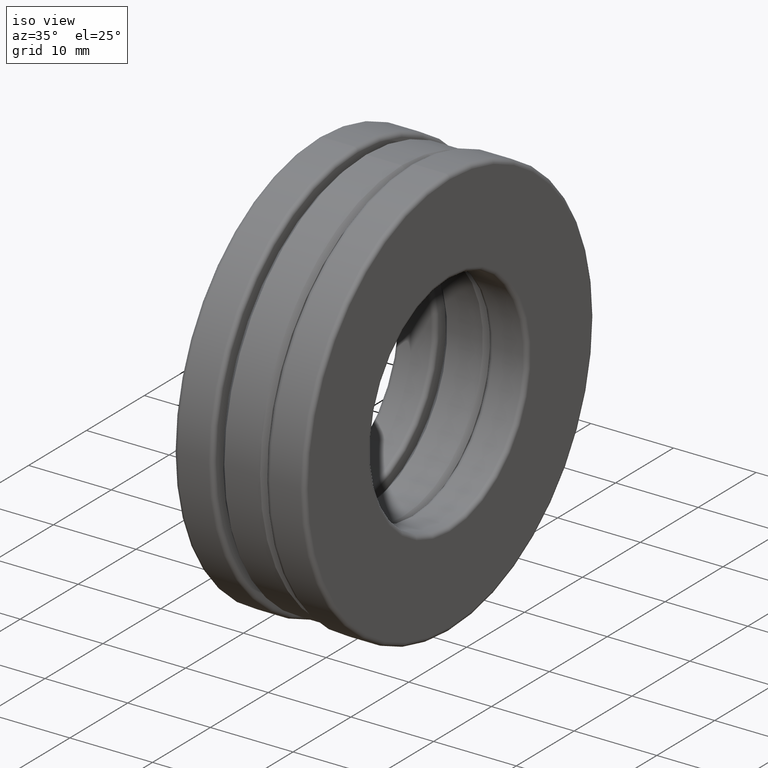
[diagram: clean part render]
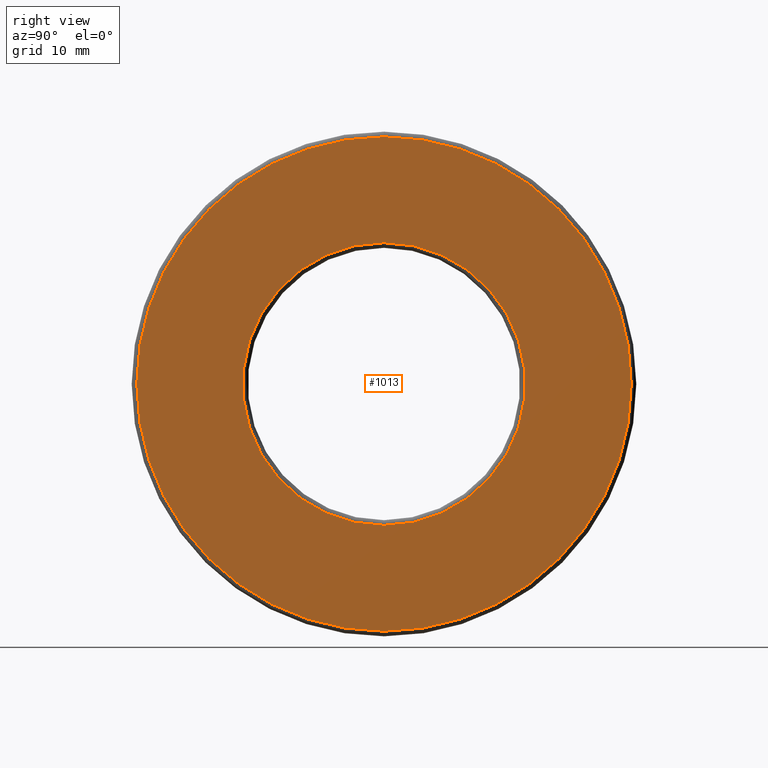
[diagram: tour spotlight — one face highlighted and labeled with its STEP entity id]
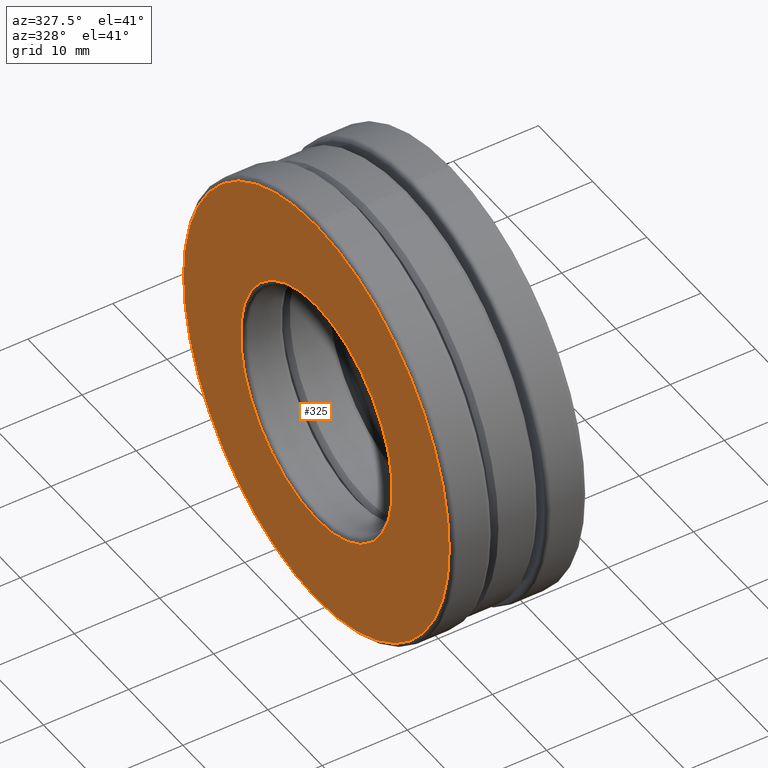
[diagram: tour spotlight — one face highlighted and labeled with its STEP entity id]
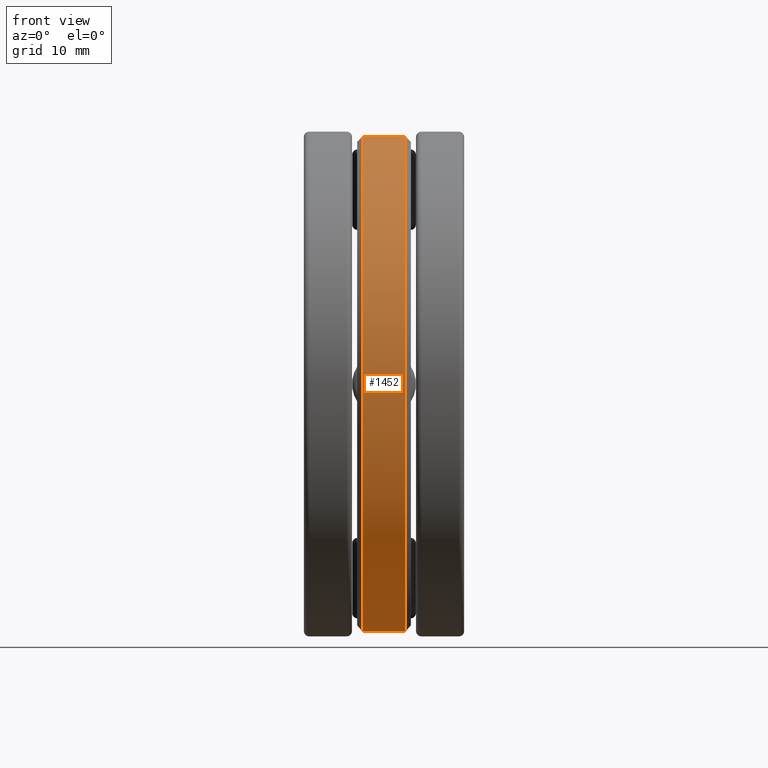
[diagram: tour spotlight — one face highlighted and labeled with its STEP entity id]
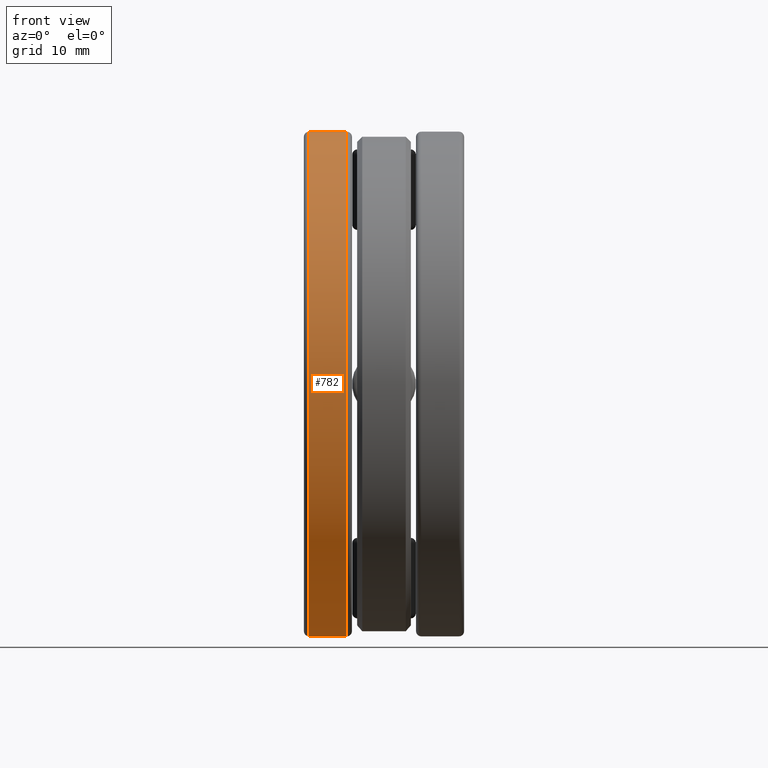
[diagram: tour spotlight — one face highlighted and labeled with its STEP entity id]
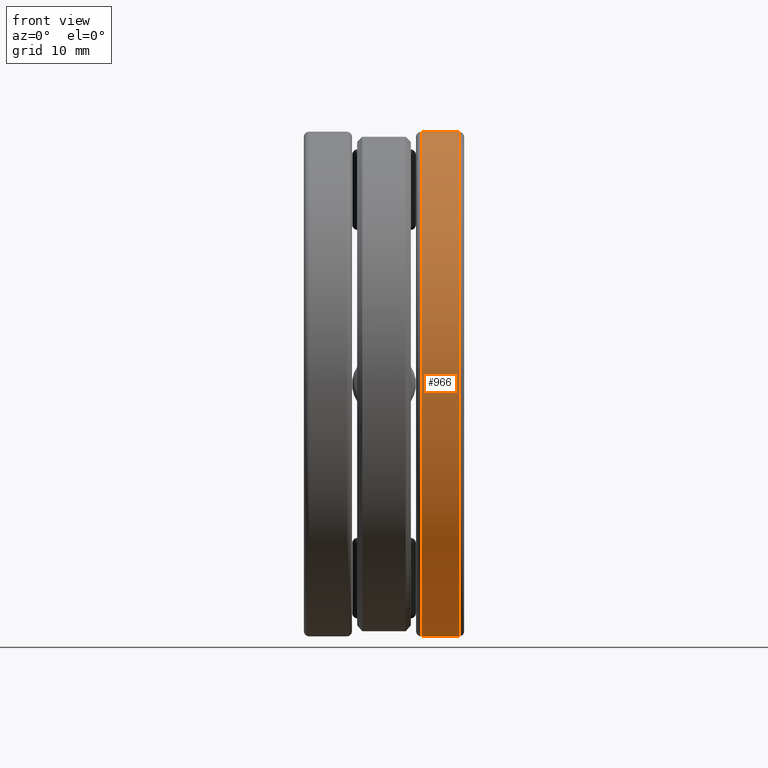
[diagram: tour spotlight — one face highlighted and labeled with its STEP entity id]
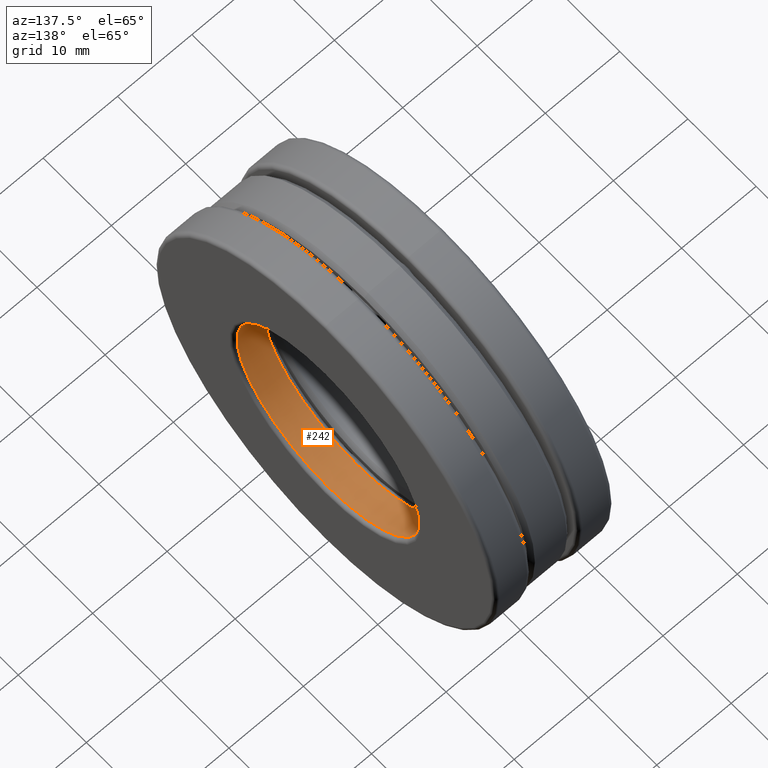
[diagram: tour spotlight — one face highlighted and labeled with its STEP entity id]
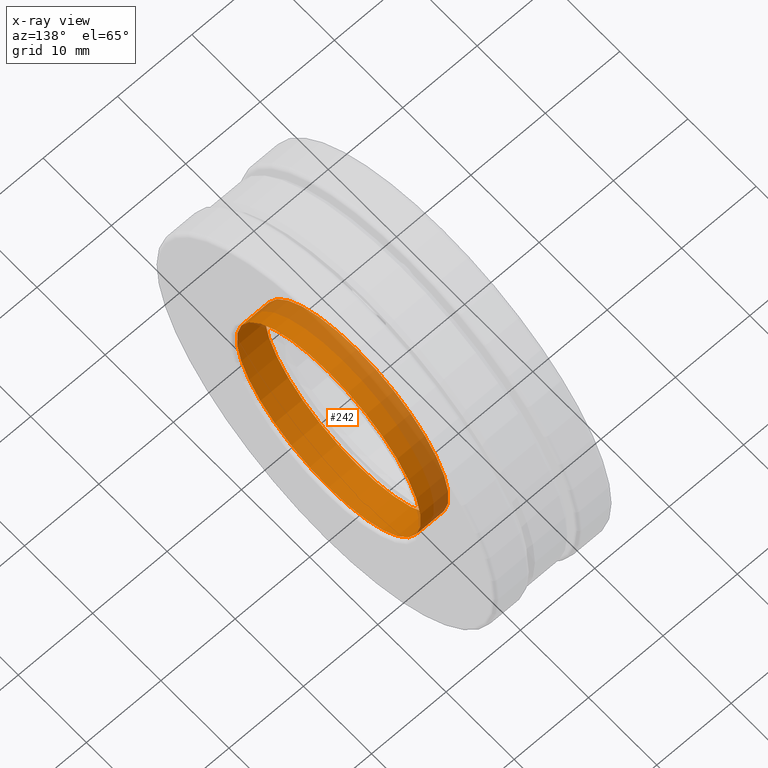
[diagram: x-ray of the same camera — body ghosted, this tour face saturated]
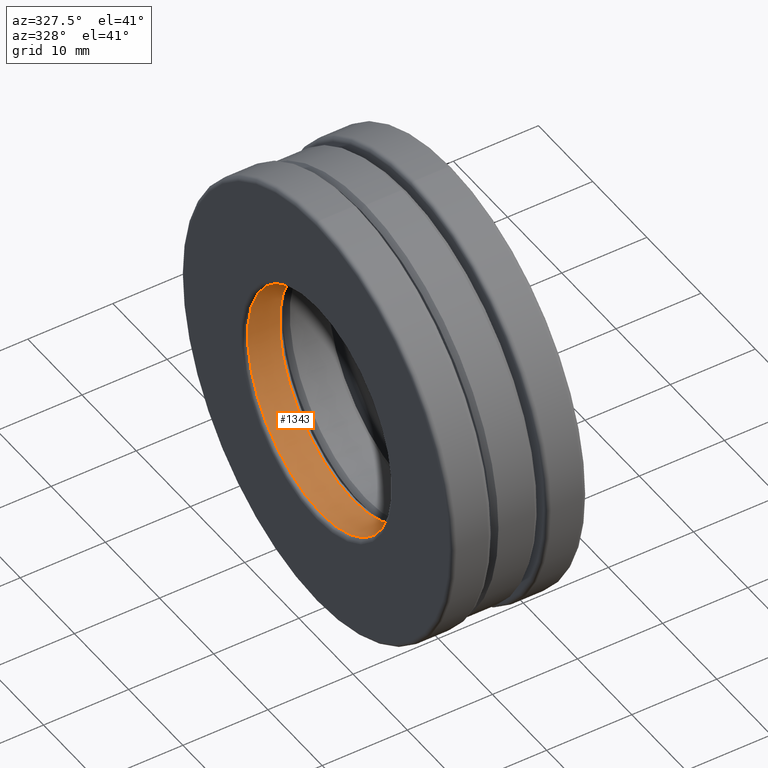
[diagram: tour spotlight — one face highlighted and labeled with its STEP entity id]
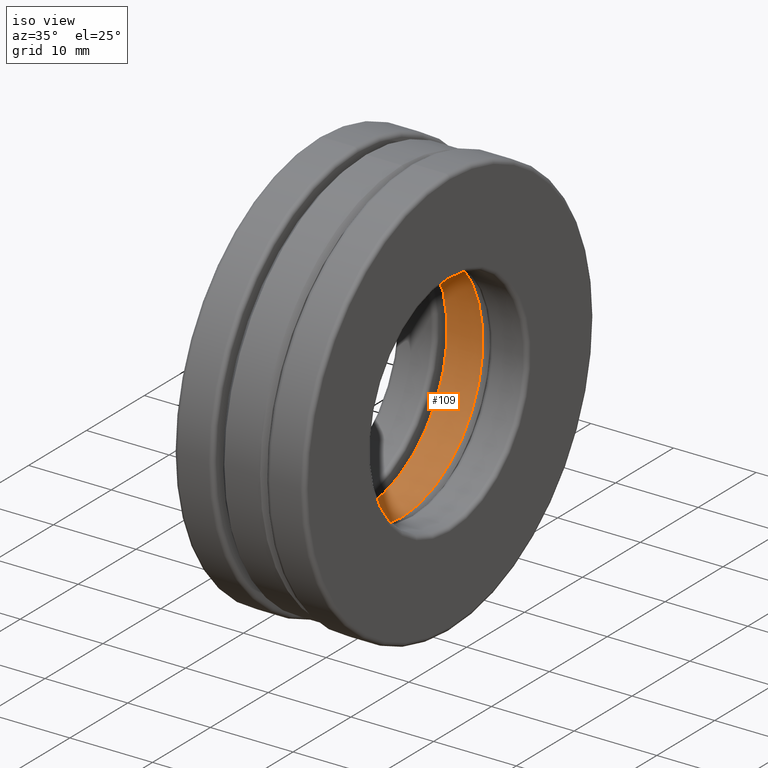
[diagram: tour spotlight — one face highlighted and labeled with its STEP entity id]
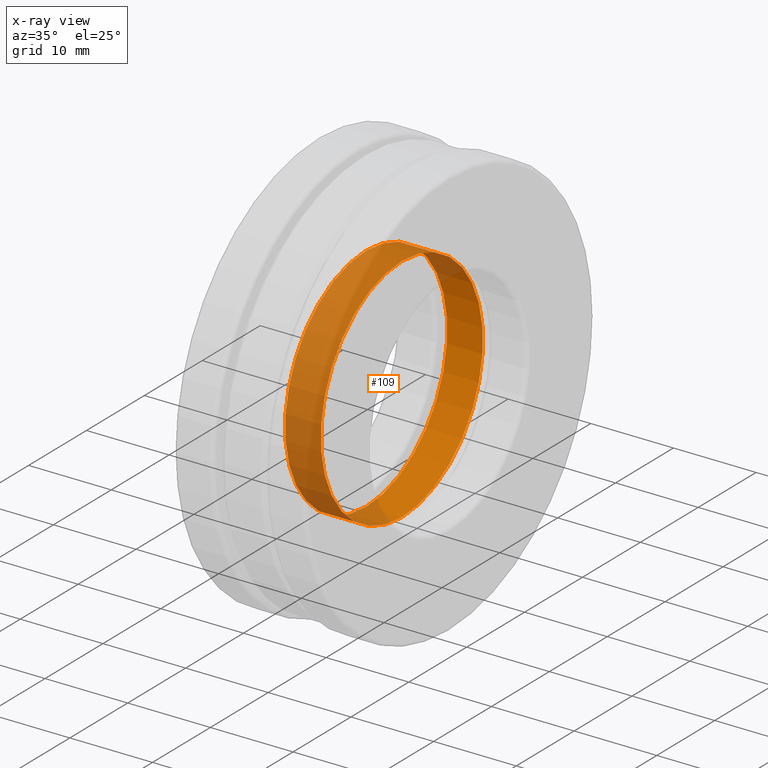
[diagram: x-ray of the same camera — body ghosted, this tour face saturated]
A machine part: a face-by-face anatomy tour. The part has 60 B-rep faces; the first image is the clean iso view, then the 8 largest visible faces are spotlighted one at a time (largest first), each with its STEP entity span.

Face 1 — right view, entity #1013. In plain terms, the highlighted planar face has unit normal (1, 0, 0).
Definition (entity closure, byte-faithful):
#3 = FACE_OUTER_BOUND ( 'NONE', #803, .T. ) ;
#4 = DIRECTION ( 'NONE',  ( -1.000000000000000000, -0.0000000000000000000, -0.0000000000000000000 ) ) ;
#48 = CIRCLE ( 'NONE', #824, 0.9643749999999999800 ) ;
#128 = CARTESIAN_POINT ( 'NONE',  ( 0.3125000000000000000, 0.0000000000000000000, 0.0000000000000000000 ) ) ;
#149 = DIRECTION ( 'NONE',  ( 0.0000000000000000000, 0.0000000000000000000, 1.000000000000000000 ) ) ;
#173 = EDGE_CURVE ( 'NONE', #286, #286, #48, .T. ) ;
#203 = AXIS2_PLACEMENT_3D ( 'NONE', #1364, #4, #1367 ) ;
#230 = CARTESIAN_POINT ( 'NONE',  ( 0.3125000000000000000, 0.0000000000000000000, 0.9643749999999999800 ) ) ;
#286 = VERTEX_POINT ( 'NONE', #230 ) ;
#357 = VERTEX_POINT ( 'NONE', #1247 ) ;
#581 = DIRECTION ( 'NONE',  ( -1.000000000000000000, -0.0000000000000000000, -0.0000000000000000000 ) ) ;
#692 = ORIENTED_EDGE ( 'NONE', *, *, #173, .F. ) ;
#726 = AXIS2_PLACEMENT_3D ( 'NONE', #1102, #753, #764 ) ;
#753 = DIRECTION ( 'NONE',  ( 1.000000000000000000, 0.0000000000000000000, 0.0000000000000000000 ) ) ;
#764 = DIRECTION ( 'NONE',  ( 0.0000000000000000000, 0.0000000000000000000, -1.000000000000000000 ) ) ;
#803 = EDGE_LOOP ( 'NONE', ( #692 ) ) ;
#824 = AXIS2_PLACEMENT_3D ( 'NONE', #128, #581, #149 ) ;
#935 = EDGE_LOOP ( 'NONE', ( #1448 ) ) ;
#958 = PLANE ( 'NONE',  #726 ) ;
#1013 = ADVANCED_FACE ( 'NONE', ( #1098, #3 ), #958, .T. ) ;
#1098 = FACE_BOUND ( 'NONE', #935, .T. ) ;
#1102 = CARTESIAN_POINT ( 'NONE',  ( 0.3125000000000000000, 0.0000000000000000000, 0.0000000000000000000 ) ) ;
#1116 = CIRCLE ( 'NONE', #203, 0.5512499999999999100 ) ;
#1247 = CARTESIAN_POINT ( 'NONE',  ( 0.3125000000000000000, 0.0000000000000000000, 0.5512499999999999100 ) ) ;
#1364 = CARTESIAN_POINT ( 'NONE',  ( 0.3125000000000000000, 0.0000000000000000000, 0.0000000000000000000 ) ) ;
#1367 = DIRECTION ( 'NONE',  ( 0.0000000000000000000, 0.0000000000000000000, 1.000000000000000000 ) ) ;
#1448 = ORIENTED_EDGE ( 'NONE', *, *, #1472, .T. ) ;
#1472 = EDGE_CURVE ( 'NONE', #357, #357, #1116, .T. ) ;

Face 2 — auxiliary view, entity #325. In plain terms, the highlighted planar face has unit normal (1, 0, 0).
Definition (entity closure, byte-faithful):
#5 = CIRCLE ( 'NONE', #425, 0.9643749999999998700 ) ;
#52 = EDGE_LOOP ( 'NONE', ( #740 ) ) ;
#56 = CARTESIAN_POINT ( 'NONE',  ( -0.3124999999999999400, 0.0000000000000000000, 0.0000000000000000000 ) ) ;
#84 = CARTESIAN_POINT ( 'NONE',  ( -0.3125000000000000000, 0.0000000000000000000, 0.0000000000000000000 ) ) ;
#174 = VERTEX_POINT ( 'NONE', #1358 ) ;
#195 = DIRECTION ( 'NONE',  ( 0.0000000000000000000, 0.0000000000000000000, 1.000000000000000000 ) ) ;
#290 = FACE_BOUND ( 'NONE', #52, .T. ) ;
#325 = ADVANCED_FACE ( 'NONE', ( #290, #1284 ), #723, .F. ) ;
#425 = AXIS2_PLACEMENT_3D ( 'NONE', #84, #748, #195 ) ;
#584 = EDGE_CURVE ( 'NONE', #174, #174, #5, .T. ) ;
#598 = DIRECTION ( 'NONE',  ( 0.0000000000000000000, 0.0000000000000000000, 1.000000000000000000 ) ) ;
#608 = VERTEX_POINT ( 'NONE', #1128 ) ;
#697 = AXIS2_PLACEMENT_3D ( 'NONE', #1061, #1300, #841 ) ;
#723 = PLANE ( 'NONE',  #697 ) ;
#740 = ORIENTED_EDGE ( 'NONE', *, *, #756, .F. ) ;
#748 = DIRECTION ( 'NONE',  ( -1.000000000000000000, -0.0000000000000000000, -0.0000000000000000000 ) ) ;
#756 = EDGE_CURVE ( 'NONE', #608, #608, #1349, .T. ) ;
#841 = DIRECTION ( 'NONE',  ( 0.0000000000000000000, 0.0000000000000000000, -1.000000000000000000 ) ) ;
#982 = ORIENTED_EDGE ( 'NONE', *, *, #584, .T. ) ;
#1061 = CARTESIAN_POINT ( 'NONE',  ( -0.3125000000000000000, -5.166127068200195800E-017, 0.0000000000000000000 ) ) ;
#1128 = CARTESIAN_POINT ( 'NONE',  ( -0.3124999999999999400, 0.0000000000000000000, 0.5512500000000000200 ) ) ;
#1264 = AXIS2_PLACEMENT_3D ( 'NONE', #56, #1298, #598 ) ;
#1284 = FACE_OUTER_BOUND ( 'NONE', #1339, .T. ) ;
#1298 = DIRECTION ( 'NONE',  ( -1.000000000000000000, -0.0000000000000000000, -0.0000000000000000000 ) ) ;
#1300 = DIRECTION ( 'NONE',  ( 1.000000000000000000, 0.0000000000000000000, 0.0000000000000000000 ) ) ;
#1339 = EDGE_LOOP ( 'NONE', ( #982 ) ) ;
#1349 = CIRCLE ( 'NONE', #1264, 0.5512500000000000200 ) ;
#1358 = CARTESIAN_POINT ( 'NONE',  ( -0.3125000000000000000, 0.0000000000000000000, 0.9643749999999998700 ) ) ;

Face 3 — front view, entity #1452. In plain terms, the highlighted cylindrical surface (bore or boss wall) has radius 24.4951 mm, axis along (-1, -0, -0).
Definition (entity closure, byte-faithful):
#157 = EDGE_LOOP ( 'NONE', ( #601 ) ) ;
#194 = VERTEX_POINT ( 'NONE', #439 ) ;
#204 = CARTESIAN_POINT ( 'NONE',  ( 0.08499999999999997800, 0.0000000000000000000, 0.0000000000000000000 ) ) ;
#439 = CARTESIAN_POINT ( 'NONE',  ( -0.08500000000000002000, 0.0000000000000000000, 0.9643749999999997600 ) ) ;
#461 = VERTEX_POINT ( 'NONE', #1241 ) ;
#551 = EDGE_CURVE ( 'NONE', #461, #461, #751, .T. ) ;
#552 = DIRECTION ( 'NONE',  ( -1.000000000000000000, -0.0000000000000000000, -0.0000000000000000000 ) ) ;
#601 = ORIENTED_EDGE ( 'NONE', *, *, #551, .T. ) ;
#644 = FACE_OUTER_BOUND ( 'NONE', #1153, .T. ) ;
#651 = DIRECTION ( 'NONE',  ( -1.000000000000000000, -0.0000000000000000000, -0.0000000000000000000 ) ) ;
#682 = AXIS2_PLACEMENT_3D ( 'NONE', #909, #552, #777 ) ;
#751 = CIRCLE ( 'NONE', #1071, 0.9643749999999997600 ) ;
#777 = DIRECTION ( 'NONE',  ( 0.0000000000000000000, 0.0000000000000000000, 1.000000000000000000 ) ) ;
#817 = CYLINDRICAL_SURFACE ( 'NONE', #682, 0.9643749999999997600 ) ;
#858 = DIRECTION ( 'NONE',  ( 0.0000000000000000000, 0.0000000000000000000, 1.000000000000000000 ) ) ;
#909 = CARTESIAN_POINT ( 'NONE',  ( 0.0000000000000000000, 0.0000000000000000000, 0.0000000000000000000 ) ) ;
#981 = AXIS2_PLACEMENT_3D ( 'NONE', #1429, #1203, #858 ) ;
#983 = EDGE_CURVE ( 'NONE', #194, #194, #1135, .T. ) ;
#1071 = AXIS2_PLACEMENT_3D ( 'NONE', #204, #651, #1461 ) ;
#1135 = CIRCLE ( 'NONE', #981, 0.9643749999999997600 ) ;
#1153 = EDGE_LOOP ( 'NONE', ( #1390 ) ) ;
#1203 = DIRECTION ( 'NONE',  ( -1.000000000000000000, -0.0000000000000000000, -0.0000000000000000000 ) ) ;
#1241 = CARTESIAN_POINT ( 'NONE',  ( 0.08499999999999997800, 0.0000000000000000000, 0.9643749999999997600 ) ) ;
#1348 = FACE_OUTER_BOUND ( 'NONE', #157, .T. ) ;
#1390 = ORIENTED_EDGE ( 'NONE', *, *, #983, .F. ) ;
#1429 = CARTESIAN_POINT ( 'NONE',  ( -0.08500000000000002000, 0.0000000000000000000, 0.0000000000000000000 ) ) ;
#1452 = ADVANCED_FACE ( 'NONE', ( #1348, #644 ), #817, .T. ) ;
#1461 = DIRECTION ( 'NONE',  ( 0.0000000000000000000, 0.0000000000000000000, 1.000000000000000000 ) ) ;

Face 4 — front view, entity #782. In plain terms, the highlighted cylindrical surface (bore or boss wall) has radius 25.0031 mm, axis along (-1, -0, -0).
Definition (entity closure, byte-faithful):
#58 = VERTEX_POINT ( 'NONE', #660 ) ;
#134 = FACE_OUTER_BOUND ( 'NONE', #1314, .T. ) ;
#140 = EDGE_CURVE ( 'NONE', #58, #58, #324, .T. ) ;
#271 = CIRCLE ( 'NONE', #338, 0.9843749999999997800 ) ;
#283 = CARTESIAN_POINT ( 'NONE',  ( 0.0000000000000000000, 0.0000000000000000000, 0.0000000000000000000 ) ) ;
#297 = EDGE_LOOP ( 'NONE', ( #1285 ) ) ;
#324 = CIRCLE ( 'NONE', #339, 0.9843749999999997800 ) ;
#338 = AXIS2_PLACEMENT_3D ( 'NONE', #993, #1108, #1451 ) ;
#339 = AXIS2_PLACEMENT_3D ( 'NONE', #568, #1141, #444 ) ;
#444 = DIRECTION ( 'NONE',  ( 0.0000000000000000000, 0.0000000000000000000, 1.000000000000000000 ) ) ;
#568 = CARTESIAN_POINT ( 'NONE',  ( -0.1449999999999999900, 0.0000000000000000000, 0.0000000000000000000 ) ) ;
#660 = CARTESIAN_POINT ( 'NONE',  ( -0.1449999999999999900, 0.0000000000000000000, 0.9843749999999997800 ) ) ;
#666 = CARTESIAN_POINT ( 'NONE',  ( -0.2925000000000000400, 0.0000000000000000000, 0.9843749999999997800 ) ) ;
#714 = ORIENTED_EDGE ( 'NONE', *, *, #140, .T. ) ;
#720 = FACE_OUTER_BOUND ( 'NONE', #297, .T. ) ;
#782 = ADVANCED_FACE ( 'NONE', ( #720, #134 ), #1409, .T. ) ;
#993 = CARTESIAN_POINT ( 'NONE',  ( -0.2925000000000000400, 0.0000000000000000000, 0.0000000000000000000 ) ) ;
#1009 = EDGE_CURVE ( 'NONE', #1328, #1328, #271, .T. ) ;
#1069 = DIRECTION ( 'NONE',  ( -1.000000000000000000, -0.0000000000000000000, -0.0000000000000000000 ) ) ;
#1108 = DIRECTION ( 'NONE',  ( -1.000000000000000000, -0.0000000000000000000, -0.0000000000000000000 ) ) ;
#1141 = DIRECTION ( 'NONE',  ( -1.000000000000000000, -0.0000000000000000000, -0.0000000000000000000 ) ) ;
#1181 = DIRECTION ( 'NONE',  ( 0.0000000000000000000, 0.0000000000000000000, 1.000000000000000000 ) ) ;
#1285 = ORIENTED_EDGE ( 'NONE', *, *, #1009, .F. ) ;
#1314 = EDGE_LOOP ( 'NONE', ( #714 ) ) ;
#1328 = VERTEX_POINT ( 'NONE', #666 ) ;
#1409 = CYLINDRICAL_SURFACE ( 'NONE', #1415, 0.9843749999999997800 ) ;
#1415 = AXIS2_PLACEMENT_3D ( 'NONE', #283, #1069, #1181 ) ;
#1451 = DIRECTION ( 'NONE',  ( 0.0000000000000000000, 0.0000000000000000000, 1.000000000000000000 ) ) ;

Face 5 — front view, entity #966. In plain terms, the highlighted cylindrical surface (bore or boss wall) has radius 25.0031 mm, axis along (-1, -0, -0).
Definition (entity closure, byte-faithful):
#75 = CYLINDRICAL_SURFACE ( 'NONE', #330, 0.9843750000000001100 ) ;
#100 = DIRECTION ( 'NONE',  ( 0.0000000000000000000, 0.0000000000000000000, 1.000000000000000000 ) ) ;
#330 = AXIS2_PLACEMENT_3D ( 'NONE', #397, #956, #1309 ) ;
#340 = CARTESIAN_POINT ( 'NONE',  ( 0.1449999999999999600, 0.0000000000000000000, 0.9843750000000001100 ) ) ;
#346 = CARTESIAN_POINT ( 'NONE',  ( 0.1449999999999999600, 0.0000000000000000000, 0.0000000000000000000 ) ) ;
#379 = AXIS2_PLACEMENT_3D ( 'NONE', #346, #685, #1136 ) ;
#397 = CARTESIAN_POINT ( 'NONE',  ( 0.0000000000000000000, 0.0000000000000000000, 0.0000000000000000000 ) ) ;
#556 = FACE_OUTER_BOUND ( 'NONE', #1356, .T. ) ;
#565 = CARTESIAN_POINT ( 'NONE',  ( 0.2925000000000000400, 0.0000000000000000000, 0.9843750000000001100 ) ) ;
#592 = CIRCLE ( 'NONE', #1324, 0.9843750000000001100 ) ;
#609 = CIRCLE ( 'NONE', #379, 0.9843750000000001100 ) ;
#653 = ORIENTED_EDGE ( 'NONE', *, *, #1232, .T. ) ;
#669 = DIRECTION ( 'NONE',  ( -1.000000000000000000, -0.0000000000000000000, -0.0000000000000000000 ) ) ;
#685 = DIRECTION ( 'NONE',  ( -1.000000000000000000, -0.0000000000000000000, -0.0000000000000000000 ) ) ;
#750 = VERTEX_POINT ( 'NONE', #340 ) ;
#766 = CARTESIAN_POINT ( 'NONE',  ( 0.2925000000000000400, 0.0000000000000000000, 0.0000000000000000000 ) ) ;
#956 = DIRECTION ( 'NONE',  ( -1.000000000000000000, -0.0000000000000000000, -0.0000000000000000000 ) ) ;
#966 = ADVANCED_FACE ( 'NONE', ( #1312, #556 ), #75, .T. ) ;
#968 = ORIENTED_EDGE ( 'NONE', *, *, #1408, .F. ) ;
#1045 = VERTEX_POINT ( 'NONE', #565 ) ;
#1136 = DIRECTION ( 'NONE',  ( 0.0000000000000000000, 0.0000000000000000000, 1.000000000000000000 ) ) ;
#1232 = EDGE_CURVE ( 'NONE', #1045, #1045, #592, .T. ) ;
#1309 = DIRECTION ( 'NONE',  ( 0.0000000000000000000, 0.0000000000000000000, 1.000000000000000000 ) ) ;
#1312 = FACE_OUTER_BOUND ( 'NONE', #1407, .T. ) ;
#1324 = AXIS2_PLACEMENT_3D ( 'NONE', #766, #669, #100 ) ;
#1356 = EDGE_LOOP ( 'NONE', ( #653 ) ) ;
#1407 = EDGE_LOOP ( 'NONE', ( #968 ) ) ;
#1408 = EDGE_CURVE ( 'NONE', #750, #750, #609, .T. ) ;

Face 6 — auxiliary view, entity #242. An x-ray twin of the same camera follows (body ghosted, this face saturated) — the face is partly hidden behind the body. In plain terms, the highlighted cylindrical surface (bore or boss wall) has radius 13.4937 mm, axis along (-1, -0, -0).
Definition (entity closure, byte-faithful):
#135 = CARTESIAN_POINT ( 'NONE',  ( 0.1450000000000000500, 0.0000000000000000000, 0.0000000000000000000 ) ) ;
#183 = ORIENTED_EDGE ( 'NONE', *, *, #659, .T. ) ;
#193 = AXIS2_PLACEMENT_3D ( 'NONE', #378, #588, #594 ) ;
#242 = ADVANCED_FACE ( 'NONE', ( #615, #433 ), #1389, .F. ) ;
#273 = EDGE_CURVE ( 'NONE', #768, #768, #577, .T. ) ;
#278 = AXIS2_PLACEMENT_3D ( 'NONE', #833, #606, #1413 ) ;
#345 = EDGE_LOOP ( 'NONE', ( #183 ) ) ;
#378 = CARTESIAN_POINT ( 'NONE',  ( 0.2925000000000000400, 0.0000000000000000000, 0.0000000000000000000 ) ) ;
#433 = FACE_OUTER_BOUND ( 'NONE', #649, .T. ) ;
#441 = CARTESIAN_POINT ( 'NONE',  ( 0.2925000000000000400, 0.0000000000000000000, 0.5312500000000000000 ) ) ;
#577 = CIRCLE ( 'NONE', #193, 0.5312500000000000000 ) ;
#588 = DIRECTION ( 'NONE',  ( -1.000000000000000000, -0.0000000000000000000, -0.0000000000000000000 ) ) ;
#594 = DIRECTION ( 'NONE',  ( 0.0000000000000000000, 0.0000000000000000000, 1.000000000000000000 ) ) ;
#606 = DIRECTION ( 'NONE',  ( -1.000000000000000000, -0.0000000000000000000, -0.0000000000000000000 ) ) ;
#615 = FACE_OUTER_BOUND ( 'NONE', #345, .T. ) ;
#641 = VERTEX_POINT ( 'NONE', #889 ) ;
#649 = EDGE_LOOP ( 'NONE', ( #1064 ) ) ;
#659 = EDGE_CURVE ( 'NONE', #641, #641, #1299, .T. ) ;
#768 = VERTEX_POINT ( 'NONE', #441 ) ;
#801 = DIRECTION ( 'NONE',  ( 0.0000000000000000000, 0.0000000000000000000, 1.000000000000000000 ) ) ;
#833 = CARTESIAN_POINT ( 'NONE',  ( 0.0000000000000000000, 0.0000000000000000000, 0.0000000000000000000 ) ) ;
#889 = CARTESIAN_POINT ( 'NONE',  ( 0.1450000000000000500, 0.0000000000000000000, 0.5312500000000000000 ) ) ;
#910 = DIRECTION ( 'NONE',  ( -1.000000000000000000, -0.0000000000000000000, -0.0000000000000000000 ) ) ;
#1064 = ORIENTED_EDGE ( 'NONE', *, *, #273, .F. ) ;
#1127 = AXIS2_PLACEMENT_3D ( 'NONE', #135, #910, #801 ) ;
#1299 = CIRCLE ( 'NONE', #1127, 0.5312500000000000000 ) ;
#1389 = CYLINDRICAL_SURFACE ( 'NONE', #278, 0.5312500000000000000 ) ;
#1413 = DIRECTION ( 'NONE',  ( 0.0000000000000000000, 0.0000000000000000000, 1.000000000000000000 ) ) ;

Face 7 — auxiliary view, entity #1343. In plain terms, the highlighted cylindrical surface (bore or boss wall) has radius 13.4937 mm, axis along (-1, -0, -0).
Definition (entity closure, byte-faithful):
#94 = DIRECTION ( 'NONE',  ( -1.000000000000000000, -0.0000000000000000000, -0.0000000000000000000 ) ) ;
#107 = CYLINDRICAL_SURFACE ( 'NONE', #1380, 0.5312500000000000000 ) ;
#120 = ORIENTED_EDGE ( 'NONE', *, *, #1467, .F. ) ;
#121 = DIRECTION ( 'NONE',  ( 0.0000000000000000000, 0.0000000000000000000, 1.000000000000000000 ) ) ;
#129 = EDGE_LOOP ( 'NONE', ( #120 ) ) ;
#202 = DIRECTION ( 'NONE',  ( 0.0000000000000000000, 0.0000000000000000000, 1.000000000000000000 ) ) ;
#232 = CARTESIAN_POINT ( 'NONE',  ( 0.0000000000000000000, 0.0000000000000000000, 0.0000000000000000000 ) ) ;
#239 = CARTESIAN_POINT ( 'NONE',  ( -0.1450000000000000500, 0.0000000000000000000, 0.0000000000000000000 ) ) ;
#376 = EDGE_LOOP ( 'NONE', ( #1083 ) ) ;
#434 = CARTESIAN_POINT ( 'NONE',  ( -0.2925000000000000400, 0.0000000000000000000, 0.5312500000000000000 ) ) ;
#447 = AXIS2_PLACEMENT_3D ( 'NONE', #239, #785, #121 ) ;
#533 = CIRCLE ( 'NONE', #447, 0.5312500000000000000 ) ;
#785 = DIRECTION ( 'NONE',  ( -1.000000000000000000, -0.0000000000000000000, -0.0000000000000000000 ) ) ;
#913 = AXIS2_PLACEMENT_3D ( 'NONE', #976, #94, #202 ) ;
#915 = DIRECTION ( 'NONE',  ( 0.0000000000000000000, 0.0000000000000000000, 1.000000000000000000 ) ) ;
#929 = FACE_OUTER_BOUND ( 'NONE', #376, .T. ) ;
#976 = CARTESIAN_POINT ( 'NONE',  ( -0.2925000000000000400, 0.0000000000000000000, 0.0000000000000000000 ) ) ;
#1023 = DIRECTION ( 'NONE',  ( -1.000000000000000000, -0.0000000000000000000, -0.0000000000000000000 ) ) ;
#1072 = EDGE_CURVE ( 'NONE', #1155, #1155, #1162, .T. ) ;
#1083 = ORIENTED_EDGE ( 'NONE', *, *, #1072, .T. ) ;
#1131 = CARTESIAN_POINT ( 'NONE',  ( -0.1450000000000000500, 0.0000000000000000000, 0.5312500000000000000 ) ) ;
#1155 = VERTEX_POINT ( 'NONE', #434 ) ;
#1162 = CIRCLE ( 'NONE', #913, 0.5312500000000000000 ) ;
#1208 = FACE_OUTER_BOUND ( 'NONE', #129, .T. ) ;
#1296 = VERTEX_POINT ( 'NONE', #1131 ) ;
#1343 = ADVANCED_FACE ( 'NONE', ( #929, #1208 ), #107, .F. ) ;
#1380 = AXIS2_PLACEMENT_3D ( 'NONE', #232, #1023, #915 ) ;
#1467 = EDGE_CURVE ( 'NONE', #1296, #1296, #533, .T. ) ;

Face 8 — iso view, entity #109. An x-ray twin of the same camera follows (body ghosted, this face saturated) — the face is partly hidden behind the body. In plain terms, the highlighted cylindrical surface (bore or boss wall) has radius 14.0017 mm, axis along (-1, -0, -0).
Definition (entity closure, byte-faithful):
#106 = CARTESIAN_POINT ( 'NONE',  ( -0.08499999999999995100, 0.0000000000000000000, 0.5512499999999999100 ) ) ;
#109 = ADVANCED_FACE ( 'NONE', ( #709, #275 ), #1355, .F. ) ;
#224 = DIRECTION ( 'NONE',  ( 0.0000000000000000000, 0.0000000000000000000, 1.000000000000000000 ) ) ;
#275 = FACE_OUTER_BOUND ( 'NONE', #454, .T. ) ;
#353 = DIRECTION ( 'NONE',  ( -1.000000000000000000, -0.0000000000000000000, -0.0000000000000000000 ) ) ;
#450 = CARTESIAN_POINT ( 'NONE',  ( 0.08500000000000004800, 0.0000000000000000000, 0.5512499999999999100 ) ) ;
#454 = EDGE_LOOP ( 'NONE', ( #1392 ) ) ;
#459 = AXIS2_PLACEMENT_3D ( 'NONE', #869, #1218, #1338 ) ;
#524 = EDGE_CURVE ( 'NONE', #703, #703, #648, .T. ) ;
#590 = EDGE_CURVE ( 'NONE', #1346, #1346, #1078, .T. ) ;
#648 = CIRCLE ( 'NONE', #459, 0.5512499999999999100 ) ;
#702 = DIRECTION ( 'NONE',  ( 0.0000000000000000000, 0.0000000000000000000, 1.000000000000000000 ) ) ;
#703 = VERTEX_POINT ( 'NONE', #450 ) ;
#706 = AXIS2_PLACEMENT_3D ( 'NONE', #1154, #1041, #702 ) ;
#709 = FACE_OUTER_BOUND ( 'NONE', #1081, .T. ) ;
#864 = ORIENTED_EDGE ( 'NONE', *, *, #524, .F. ) ;
#869 = CARTESIAN_POINT ( 'NONE',  ( 0.08500000000000004800, 0.0000000000000000000, 0.0000000000000000000 ) ) ;
#1041 = DIRECTION ( 'NONE',  ( -1.000000000000000000, -0.0000000000000000000, -0.0000000000000000000 ) ) ;
#1078 = CIRCLE ( 'NONE', #1204, 0.5512499999999999100 ) ;
#1081 = EDGE_LOOP ( 'NONE', ( #864 ) ) ;
#1132 = CARTESIAN_POINT ( 'NONE',  ( -0.08499999999999995100, 0.0000000000000000000, 0.0000000000000000000 ) ) ;
#1154 = CARTESIAN_POINT ( 'NONE',  ( 0.0000000000000000000, 0.0000000000000000000, 0.0000000000000000000 ) ) ;
#1204 = AXIS2_PLACEMENT_3D ( 'NONE', #1132, #353, #224 ) ;
#1218 = DIRECTION ( 'NONE',  ( -1.000000000000000000, -0.0000000000000000000, -0.0000000000000000000 ) ) ;
#1338 = DIRECTION ( 'NONE',  ( 0.0000000000000000000, 0.0000000000000000000, 1.000000000000000000 ) ) ;
#1346 = VERTEX_POINT ( 'NONE', #106 ) ;
#1355 = CYLINDRICAL_SURFACE ( 'NONE', #706, 0.5512499999999999100 ) ;
#1392 = ORIENTED_EDGE ( 'NONE', *, *, #590, .T. ) ;